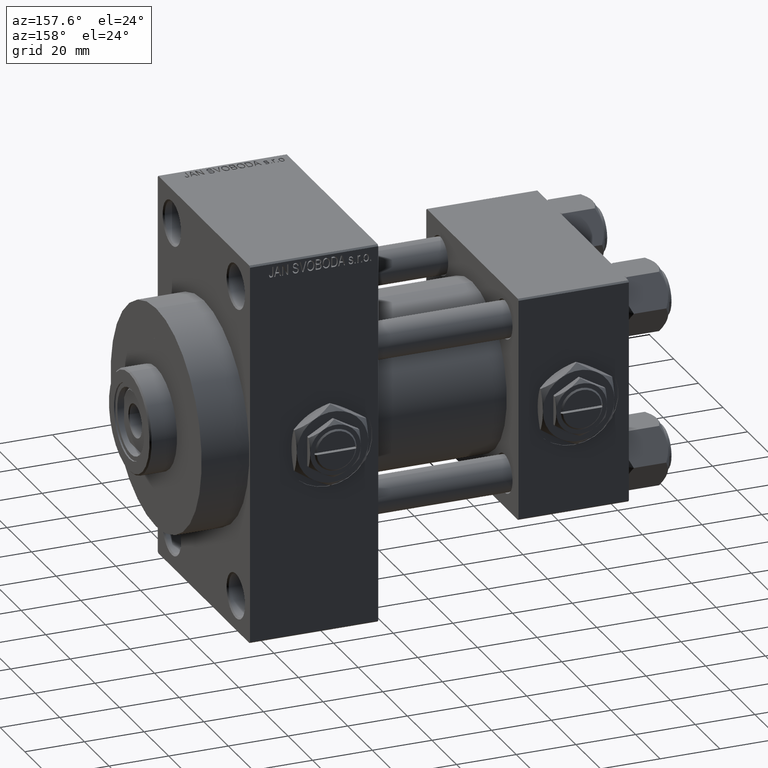
[diagram: clean part render]
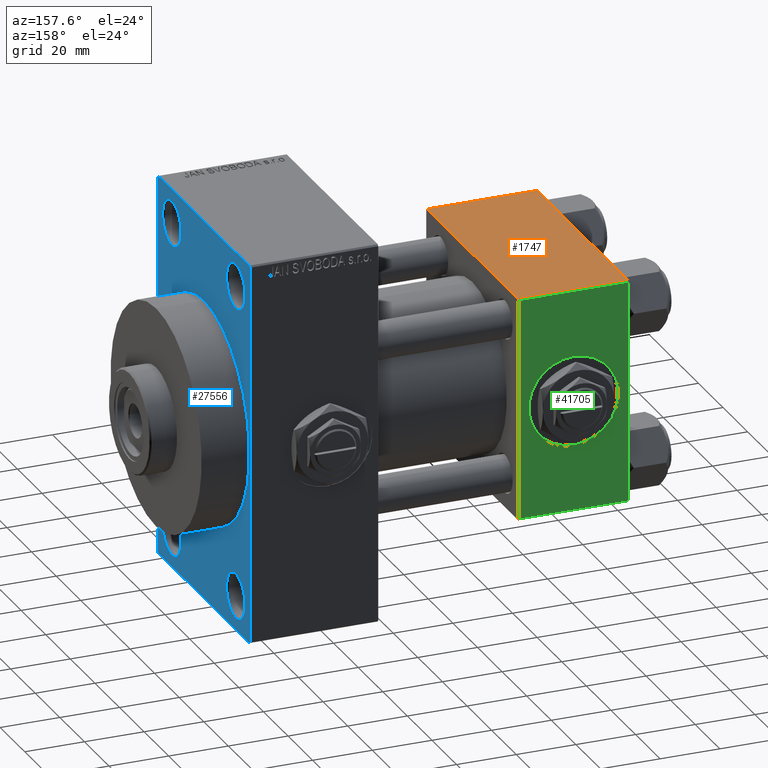
[diagram: same view with three faces highlighted in distinct colors, each labeled with its STEP entity id]
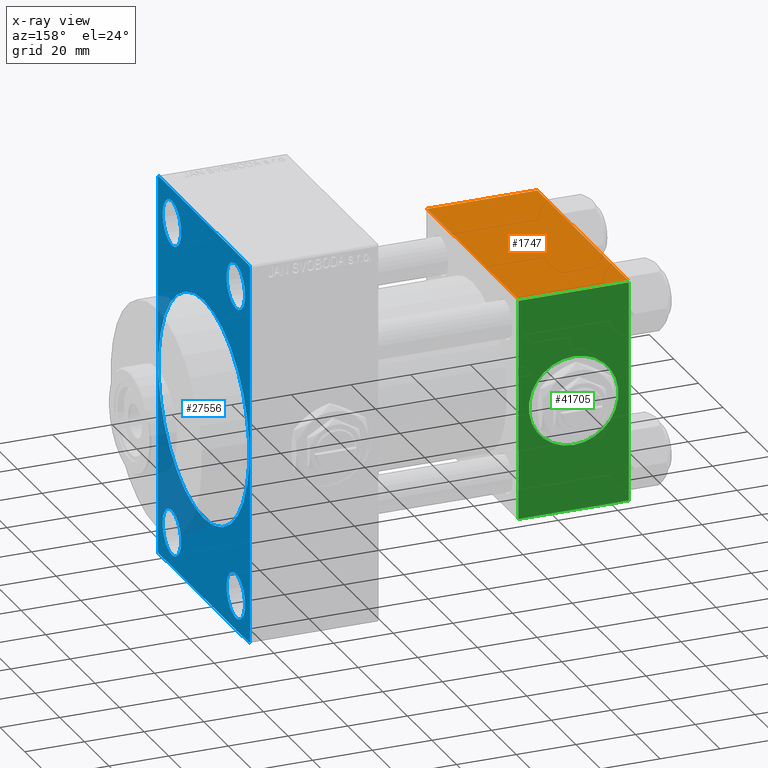
[diagram: x-ray of the same camera — body ghosted, the three highlighted faces saturated]
A machine part, auxiliary view with three faces highlighted in distinct colors.
The next image is the same camera in x-ray (body ghosted, the three faces saturated) — at least one of them is partly hidden behind the body in this view.
Their STEP definitions:

[orange] entity #1747 — the highlighted planar face has unit normal (0, 0, -1).
#1133 = DIRECTION ( 'NONE',  ( -1.000000000000000000, 0.000000000000000000, 0.000000000000000000 ) ) ;
#1747 = ADVANCED_FACE ( 'NONE', ( #3880 ), #38270, .F. ) ;
#2412 = VECTOR ( 'NONE', #1133, 1000.000000000000000 ) ;
#3880 = FACE_OUTER_BOUND ( 'NONE', #31680, .T. ) ;
#5233 = CARTESIAN_POINT ( 'NONE',  ( 0.000000000000000000, -37.00000000000000711, 37.49999999999999289 ) ) ;
#5982 = DIRECTION ( 'NONE',  ( 1.000000000000000000, 0.000000000000000000, 0.000000000000000000 ) ) ;
#6245 = EDGE_CURVE ( 'NONE', #48094, #19936, #25937, .T. ) ;
#6567 = VECTOR ( 'NONE', #5982, 1000.000000000000000 ) ;
#7854 = DIRECTION ( 'NONE',  ( 0.000000000000000000, 9.251858538542971581E-17, -1.000000000000000000 ) ) ;
#8714 = VERTEX_POINT ( 'NONE', #21236 ) ;
#10751 = CARTESIAN_POINT ( 'NONE',  ( 37.00000000000000000, 37.49999999999999289, 37.50000000000000000 ) ) ;
#12046 = ORIENTED_EDGE ( 'NONE', *, *, #17566, .T. ) ;
#12244 = ORIENTED_EDGE ( 'NONE', *, *, #37873, .F. ) ;
#15107 = CARTESIAN_POINT ( 'NONE',  ( 37.00000000000000000, 37.49999999999999289, 37.50000000000000000 ) ) ;
#17566 = EDGE_CURVE ( 'NONE', #8714, #48094, #19005, .T. ) ;
#19005 = LINE ( 'NONE', #34458, #41868 ) ;
#19936 = VERTEX_POINT ( 'NONE', #41323 ) ;
#21236 = CARTESIAN_POINT ( 'NONE',  ( 0.000000000000000000, 36.99999999999999289, 37.50000000000000000 ) ) ;
#21249 = VECTOR ( 'NONE', #36451, 1000.000000000000000 ) ;
#24561 = CARTESIAN_POINT ( 'NONE',  ( 0.000000000000000000, 36.99999999999999289, 37.50000000000000000 ) ) ;
#25937 = LINE ( 'NONE', #48102, #6567 ) ;
#25979 = LINE ( 'NONE', #10751, #21249 ) ;
#26488 = DIRECTION ( 'NONE',  ( 0.000000000000000000, -1.000000000000000000, -9.251858538542971581E-17 ) ) ;
#29906 = ORIENTED_EDGE ( 'NONE', *, *, #48959, .T. ) ;
#31680 = EDGE_LOOP ( 'NONE', ( #12046, #33719, #12244, #29906 ) ) ;
#33521 = AXIS2_PLACEMENT_3D ( 'NONE', #15107, #7854, #45987 ) ;
#33719 = ORIENTED_EDGE ( 'NONE', *, *, #6245, .T. ) ;
#34458 = CARTESIAN_POINT ( 'NONE',  ( 0.000000000000000000, 37.49999999999999289, 37.50000000000000000 ) ) ;
#35788 = LINE ( 'NONE', #24561, #2412 ) ;
#36451 = DIRECTION ( 'NONE',  ( 0.000000000000000000, -1.000000000000000000, -9.251858538542971581E-17 ) ) ;
#37873 = EDGE_CURVE ( 'NONE', #40441, #19936, #25979, .T. ) ;
#38270 = PLANE ( 'NONE',  #33521 ) ;
#40441 = VERTEX_POINT ( 'NONE', #44576 ) ;
#41323 = CARTESIAN_POINT ( 'NONE',  ( 37.00000000000000000, -37.00000000000000711, 37.49999999999999289 ) ) ;
#41868 = VECTOR ( 'NONE', #26488, 1000.000000000000000 ) ;
#44576 = CARTESIAN_POINT ( 'NONE',  ( 37.00000000000000000, 36.99999999999999289, 37.50000000000000000 ) ) ;
#45987 = DIRECTION ( 'NONE',  ( 0.000000000000000000, 1.000000000000000000, 9.251858538542971581E-17 ) ) ;
#48094 = VERTEX_POINT ( 'NONE', #5233 ) ;
#48102 = CARTESIAN_POINT ( 'NONE',  ( 37.00000000000000000, -37.00000000000000711, 37.49999999999999289 ) ) ;
#48959 = EDGE_CURVE ( 'NONE', #40441, #8714, #35788, .T. ) ;

[blue] entity #27556 — the highlighted planar face has unit normal (-1, 0, 0).
#570 = FACE_BOUND ( 'NONE', #29268, .T. ) ;
#758 = CARTESIAN_POINT ( 'NONE',  ( 127.0000000000000000, 26.00000000000000000, -59.99999999999997158 ) ) ;
#1199 = CARTESIAN_POINT ( 'NONE',  ( 127.0000000000000000, 26.00000000000000000, -45.00000000000001421 ) ) ;
#1335 = CARTESIAN_POINT ( 'NONE',  ( 127.0000000000000000, 0.000000000000000000, 0.000000000000000000 ) ) ;
#1342 = ORIENTED_EDGE ( 'NONE', *, *, #8841, .T. ) ;
#1511 = CARTESIAN_POINT ( 'NONE',  ( 127.0000000000000000, -36.99999999999999289, -64.00000000000001421 ) ) ;
#1804 = CARTESIAN_POINT ( 'NONE',  ( 127.0000000000000000, 37.50000000000000000, 63.49999999999998579 ) ) ;
#2367 = EDGE_CURVE ( 'NONE', #29842, #11015, #22469, .T. ) ;
#3235 = CARTESIAN_POINT ( 'NONE',  ( 127.0000000000000000, 0.000000000000000000, 0.000000000000000000 ) ) ;
#3335 = CARTESIAN_POINT ( 'NONE',  ( 127.0000000000000000, 0.000000000000000000, 0.000000000000000000 ) ) ;
#3370 = VERTEX_POINT ( 'NONE', #35136 ) ;
#3456 = CARTESIAN_POINT ( 'NONE',  ( 127.0000000000000000, 0.000000000000000000, 37.00000000000000000 ) ) ;
#3502 = LINE ( 'NONE', #45857, #21792 ) ;
#3568 = CARTESIAN_POINT ( 'NONE',  ( 127.0000000000000000, 37.49999999999999289, -63.50000000000001421 ) ) ;
#5158 = CARTESIAN_POINT ( 'NONE',  ( 127.0000000000000000, -25.99999999999999645, -52.49999999999999289 ) ) ;
#5307 = CIRCLE ( 'NONE', #18061, 37.00000000000000000 ) ;
#5408 = CARTESIAN_POINT ( 'NONE',  ( 127.0000000000000000, -36.99999999999999289, -64.00000000000001421 ) ) ;
#6230 = LINE ( 'NONE', #14458, #8277 ) ;
#6337 = CARTESIAN_POINT ( 'NONE',  ( 127.0000000000000000, -25.99999999999999645, 52.50000000000000000 ) ) ;
#7028 = VERTEX_POINT ( 'NONE', #40090 ) ;
#7304 = FACE_BOUND ( 'NONE', #12590, .T. ) ;
#7314 = DIRECTION ( 'NONE',  ( 0.000000000000000000, 0.000000000000000000, 1.000000000000000000 ) ) ;
#7794 = PLANE ( 'NONE',  #7833 ) ;
#7833 = AXIS2_PLACEMENT_3D ( 'NONE', #3335, #22541, #44942 ) ;
#8101 = EDGE_CURVE ( 'NONE', #29842, #43693, #3502, .T. ) ;
#8277 = VECTOR ( 'NONE', #22695, 1000.000000000000000 ) ;
#8841 = EDGE_CURVE ( 'NONE', #40517, #3370, #26595, .T. ) ;
#9321 = EDGE_CURVE ( 'NONE', #37394, #43693, #13717, .T. ) ;
#9326 = EDGE_CURVE ( 'NONE', #7028, #37394, #6230, .T. ) ;
#9429 = DIRECTION ( 'NONE',  ( -0.000000000000000000, -0.7071067811865524577, -0.7071067811865426878 ) ) ;
#9827 = EDGE_LOOP ( 'NONE', ( #29809, #30114 ) ) ;
#10225 = CIRCLE ( 'NONE', #13393, 7.499999999999978684 ) ;
#10723 = DIRECTION ( 'NONE',  ( 0.000000000000000000, -1.000000000000000000, -1.850371707708594563E-16 ) ) ;
#11015 = VERTEX_POINT ( 'NONE', #3568 ) ;
#11358 = EDGE_LOOP ( 'NONE', ( #38571, #42756 ) ) ;
#11470 = CARTESIAN_POINT ( 'NONE',  ( 127.0000000000000000, 37.49999999999999289, -63.50000000000001421 ) ) ;
#11608 = ORIENTED_EDGE ( 'NONE', *, *, #48938, .T. ) ;
#11677 = EDGE_CURVE ( 'NONE', #17211, #18455, #32311, .T. ) ;
#12365 = AXIS2_PLACEMENT_3D ( 'NONE', #6337, #41477, #7314 ) ;
#12590 = EDGE_LOOP ( 'NONE', ( #42108, #13781 ) ) ;
#12654 = EDGE_CURVE ( 'NONE', #38309, #29208, #44876, .T. ) ;
#13242 = VECTOR ( 'NONE', #32003, 1000.000000000000000 ) ;
#13393 = AXIS2_PLACEMENT_3D ( 'NONE', #5158, #31600, #16877 ) ;
#13673 = CARTESIAN_POINT ( 'NONE',  ( 127.0000000000000000, -37.49999999999999289, 63.50000000000000000 ) ) ;
#13717 = LINE ( 'NONE', #1511, #29010 ) ;
#13781 = ORIENTED_EDGE ( 'NONE', *, *, #19413, .F. ) ;
#14454 = VERTEX_POINT ( 'NONE', #3456 ) ;
#14458 = CARTESIAN_POINT ( 'NONE',  ( 127.0000000000000000, -37.49999999999999289, 63.99999999999997158 ) ) ;
#14624 = AXIS2_PLACEMENT_3D ( 'NONE', #45957, #42954, #15565 ) ;
#14729 = DIRECTION ( 'NONE',  ( -0.000000000000000000, 0.7071067811865376918, 0.7071067811865573427 ) ) ;
#15421 = EDGE_CURVE ( 'NONE', #41925, #18681, #27466, .T. ) ;
#15565 = DIRECTION ( 'NONE',  ( 0.000000000000000000, 0.000000000000000000, 1.000000000000000000 ) ) ;
#15930 = AXIS2_PLACEMENT_3D ( 'NONE', #35300, #46488, #32286 ) ;
#15999 = CARTESIAN_POINT ( 'NONE',  ( 127.0000000000000000, 37.00000000000002132, -64.00000000000000000 ) ) ;
#16550 = DIRECTION ( 'NONE',  ( 0.000000000000000000, 0.000000000000000000, -1.000000000000000000 ) ) ;
#16821 = VECTOR ( 'NONE', #14729, 1000.000000000000114 ) ;
#16877 = DIRECTION ( 'NONE',  ( 0.000000000000000000, 0.000000000000000000, 1.000000000000000000 ) ) ;
#16920 = LINE ( 'NONE', #13673, #48392 ) ;
#17113 = DIRECTION ( 'NONE',  ( 0.000000000000000000, 0.000000000000000000, 1.000000000000000000 ) ) ;
#17211 = VERTEX_POINT ( 'NONE', #1804 ) ;
#17354 = DIRECTION ( 'NONE',  ( 0.000000000000000000, -0.7071067811865474617, 0.7071067811865474617 ) ) ;
#17370 = CARTESIAN_POINT ( 'NONE',  ( 127.0000000000000000, 26.00000000000000000, 52.49999999999999289 ) ) ;
#18061 = AXIS2_PLACEMENT_3D ( 'NONE', #1335, #27785, #16550 ) ;
#18102 = DIRECTION ( 'NONE',  ( -1.000000000000000000, 0.000000000000000000, -0.000000000000000000 ) ) ;
#18455 = VERTEX_POINT ( 'NONE', #47606 ) ;
#18681 = VERTEX_POINT ( 'NONE', #30418 ) ;
#18947 = EDGE_CURVE ( 'NONE', #35602, #33478, #49073, .T. ) ;
#19289 = FACE_BOUND ( 'NONE', #42712, .T. ) ;
#19404 = ORIENTED_EDGE ( 'NONE', *, *, #8101, .F. ) ;
#19413 = EDGE_CURVE ( 'NONE', #44720, #14454, #5307, .T. ) ;
#19472 = EDGE_CURVE ( 'NONE', #18455, #25864, #28028, .T. ) ;
#20818 = CARTESIAN_POINT ( 'NONE',  ( 127.0000000000000000, 37.50000000000000000, 63.99999999999998579 ) ) ;
#21146 = CIRCLE ( 'NONE', #12365, 7.499999999999978684 ) ;
#21412 = CARTESIAN_POINT ( 'NONE',  ( 127.0000000000000000, 26.00000000000000000, -52.49999999999999289 ) ) ;
#21792 = VECTOR ( 'NONE', #10723, 1000.000000000000000 ) ;
#22175 = EDGE_CURVE ( 'NONE', #25864, #7028, #16920, .T. ) ;
#22469 = LINE ( 'NONE', #11470, #16821 ) ;
#22541 = DIRECTION ( 'NONE',  ( -1.000000000000000000, 0.000000000000000000, -0.000000000000000000 ) ) ;
#22695 = DIRECTION ( 'NONE',  ( 0.000000000000000000, 0.000000000000000000, -1.000000000000000000 ) ) ;
#23876 = DIRECTION ( 'NONE',  ( -1.000000000000000000, 0.000000000000000000, -0.000000000000000000 ) ) ;
#23955 = ORIENTED_EDGE ( 'NONE', *, *, #9321, .T. ) ;
#24589 = CARTESIAN_POINT ( 'NONE',  ( 127.0000000000000000, 37.00000000000000000, 63.99999999999998579 ) ) ;
#25761 = EDGE_LOOP ( 'NONE', ( #46219, #23955, #19404, #48710, #38120, #47297, #36500, #34828 ) ) ;
#25864 = VERTEX_POINT ( 'NONE', #29392 ) ;
#25880 = DIRECTION ( 'NONE',  ( 0.000000000000000000, 0.000000000000000000, 1.000000000000000000 ) ) ;
#26156 = CARTESIAN_POINT ( 'NONE',  ( 127.0000000000000000, -25.99999999999999645, -59.99999999999997158 ) ) ;
#26183 = DIRECTION ( 'NONE',  ( 1.000000000000000000, 0.000000000000000000, 0.000000000000000000 ) ) ;
#26595 = CIRCLE ( 'NONE', #14624, 7.499999999999978684 ) ;
#26659 = CARTESIAN_POINT ( 'NONE',  ( 127.0000000000000000, -37.49999999999999289, -63.50000000000002842 ) ) ;
#27466 = CIRCLE ( 'NONE', #29865, 7.499999999999978684 ) ;
#27506 = AXIS2_PLACEMENT_3D ( 'NONE', #30272, #48925, #37724 ) ;
#27556 = ADVANCED_FACE ( 'NONE', ( #34735, #19289, #41212, #570, #7304, #37479 ), #7794, .F. ) ;
#27774 = ORIENTED_EDGE ( 'NONE', *, *, #42809, .T. ) ;
#27785 = DIRECTION ( 'NONE',  ( 1.000000000000000000, 0.000000000000000000, 0.000000000000000000 ) ) ;
#27890 = CIRCLE ( 'NONE', #15930, 7.499999999999978684 ) ;
#28028 = LINE ( 'NONE', #39474, #13242 ) ;
#28225 = AXIS2_PLACEMENT_3D ( 'NONE', #3235, #26183, #29432 ) ;
#29010 = VECTOR ( 'NONE', #40390, 1000.000000000000000 ) ;
#29208 = VERTEX_POINT ( 'NONE', #42531 ) ;
#29268 = EDGE_LOOP ( 'NONE', ( #36633, #11608 ) ) ;
#29392 = CARTESIAN_POINT ( 'NONE',  ( 127.0000000000000000, -37.00000000000001421, 63.99999999999997158 ) ) ;
#29432 = DIRECTION ( 'NONE',  ( 0.000000000000000000, 0.000000000000000000, -1.000000000000000000 ) ) ;
#29809 = ORIENTED_EDGE ( 'NONE', *, *, #18947, .T. ) ;
#29842 = VERTEX_POINT ( 'NONE', #15999 ) ;
#29865 = AXIS2_PLACEMENT_3D ( 'NONE', #31599, #23876, #46778 ) ;
#30114 = ORIENTED_EDGE ( 'NONE', *, *, #35188, .T. ) ;
#30272 = CARTESIAN_POINT ( 'NONE',  ( 127.0000000000000000, 26.00000000000000000, -52.49999999999999289 ) ) ;
#30418 = CARTESIAN_POINT ( 'NONE',  ( 127.0000000000000000, -25.99999999999999645, 45.00000000000002132 ) ) ;
#31131 = CARTESIAN_POINT ( 'NONE',  ( 127.0000000000000000, 26.00000000000000000, 45.00000000000001421 ) ) ;
#31599 = CARTESIAN_POINT ( 'NONE',  ( 127.0000000000000000, -25.99999999999999645, 52.50000000000000000 ) ) ;
#31600 = DIRECTION ( 'NONE',  ( -1.000000000000000000, 0.000000000000000000, -0.000000000000000000 ) ) ;
#31783 = EDGE_CURVE ( 'NONE', #18681, #41925, #21146, .T. ) ;
#32003 = DIRECTION ( 'NONE',  ( 0.000000000000000000, -1.000000000000000000, -1.850371707708594563E-16 ) ) ;
#32286 = DIRECTION ( 'NONE',  ( 0.000000000000000000, 0.000000000000000000, 1.000000000000000000 ) ) ;
#32311 = LINE ( 'NONE', #24589, #43243 ) ;
#33416 = EDGE_CURVE ( 'NONE', #14454, #44720, #44111, .T. ) ;
#33478 = VERTEX_POINT ( 'NONE', #1199 ) ;
#34735 = FACE_BOUND ( 'NONE', #11358, .T. ) ;
#34828 = ORIENTED_EDGE ( 'NONE', *, *, #22175, .T. ) ;
#35136 = CARTESIAN_POINT ( 'NONE',  ( 127.0000000000000000, -25.99999999999999645, -45.00000000000001421 ) ) ;
#35188 = EDGE_CURVE ( 'NONE', #33478, #35602, #48154, .T. ) ;
#35292 = CARTESIAN_POINT ( 'NONE',  ( 127.0000000000000000, -25.99999999999999645, 59.99999999999997868 ) ) ;
#35300 = CARTESIAN_POINT ( 'NONE',  ( 127.0000000000000000, 26.00000000000000000, 52.49999999999999289 ) ) ;
#35363 = AXIS2_PLACEMENT_3D ( 'NONE', #17370, #18102, #17113 ) ;
#35602 = VERTEX_POINT ( 'NONE', #758 ) ;
#36500 = ORIENTED_EDGE ( 'NONE', *, *, #19472, .T. ) ;
#36602 = DIRECTION ( 'NONE',  ( -1.000000000000000000, 0.000000000000000000, -0.000000000000000000 ) ) ;
#36633 = ORIENTED_EDGE ( 'NONE', *, *, #12654, .T. ) ;
#37169 = AXIS2_PLACEMENT_3D ( 'NONE', #21412, #36602, #25880 ) ;
#37394 = VERTEX_POINT ( 'NONE', #26659 ) ;
#37479 = FACE_OUTER_BOUND ( 'NONE', #25761, .T. ) ;
#37724 = DIRECTION ( 'NONE',  ( 0.000000000000000000, 0.000000000000000000, 1.000000000000000000 ) ) ;
#38120 = ORIENTED_EDGE ( 'NONE', *, *, #45806, .F. ) ;
#38309 = VERTEX_POINT ( 'NONE', #31131 ) ;
#38571 = ORIENTED_EDGE ( 'NONE', *, *, #31783, .T. ) ;
#39474 = CARTESIAN_POINT ( 'NONE',  ( 127.0000000000000000, 37.50000000000000000, 63.99999999999998579 ) ) ;
#39744 = LINE ( 'NONE', #20818, #45243 ) ;
#40090 = CARTESIAN_POINT ( 'NONE',  ( 127.0000000000000000, -37.49999999999999289, 63.50000000000000000 ) ) ;
#40390 = DIRECTION ( 'NONE',  ( 0.000000000000000000, 0.7071067811865573427, -0.7071067811865378028 ) ) ;
#40517 = VERTEX_POINT ( 'NONE', #26156 ) ;
#41212 = FACE_BOUND ( 'NONE', #9827, .T. ) ;
#41477 = DIRECTION ( 'NONE',  ( -1.000000000000000000, 0.000000000000000000, -0.000000000000000000 ) ) ;
#41925 = VERTEX_POINT ( 'NONE', #35292 ) ;
#42108 = ORIENTED_EDGE ( 'NONE', *, *, #33416, .F. ) ;
#42531 = CARTESIAN_POINT ( 'NONE',  ( 127.0000000000000000, 26.00000000000000000, 59.99999999999997158 ) ) ;
#42712 = EDGE_LOOP ( 'NONE', ( #1342, #27774 ) ) ;
#42756 = ORIENTED_EDGE ( 'NONE', *, *, #15421, .T. ) ;
#42809 = EDGE_CURVE ( 'NONE', #3370, #40517, #10225, .T. ) ;
#42954 = DIRECTION ( 'NONE',  ( -1.000000000000000000, 0.000000000000000000, -0.000000000000000000 ) ) ;
#43243 = VECTOR ( 'NONE', #17354, 1000.000000000000114 ) ;
#43693 = VERTEX_POINT ( 'NONE', #5408 ) ;
#43721 = DIRECTION ( 'NONE',  ( 0.000000000000000000, -5.421010862427522170E-17, -1.000000000000000000 ) ) ;
#44111 = CIRCLE ( 'NONE', #28225, 37.00000000000000000 ) ;
#44720 = VERTEX_POINT ( 'NONE', #47787 ) ;
#44876 = CIRCLE ( 'NONE', #35363, 7.499999999999978684 ) ;
#44942 = DIRECTION ( 'NONE',  ( -0.000000000000000000, 0.000000000000000000, 1.000000000000000000 ) ) ;
#45243 = VECTOR ( 'NONE', #43721, 1000.000000000000000 ) ;
#45806 = EDGE_CURVE ( 'NONE', #17211, #11015, #39744, .T. ) ;
#45857 = CARTESIAN_POINT ( 'NONE',  ( 127.0000000000000000, 37.49999999999999289, -64.00000000000000000 ) ) ;
#45957 = CARTESIAN_POINT ( 'NONE',  ( 127.0000000000000000, -25.99999999999999645, -52.49999999999999289 ) ) ;
#46219 = ORIENTED_EDGE ( 'NONE', *, *, #9326, .T. ) ;
#46488 = DIRECTION ( 'NONE',  ( -1.000000000000000000, 0.000000000000000000, -0.000000000000000000 ) ) ;
#46778 = DIRECTION ( 'NONE',  ( 0.000000000000000000, 0.000000000000000000, 1.000000000000000000 ) ) ;
#47297 = ORIENTED_EDGE ( 'NONE', *, *, #11677, .T. ) ;
#47606 = CARTESIAN_POINT ( 'NONE',  ( 127.0000000000000000, 37.00000000000000000, 63.99999999999998579 ) ) ;
#47787 = CARTESIAN_POINT ( 'NONE',  ( 127.0000000000000000, 4.531193156845206793E-15, -37.00000000000000000 ) ) ;
#48154 = CIRCLE ( 'NONE', #27506, 7.499999999999978684 ) ;
#48392 = VECTOR ( 'NONE', #9429, 1000.000000000000000 ) ;
#48710 = ORIENTED_EDGE ( 'NONE', *, *, #2367, .T. ) ;
#48925 = DIRECTION ( 'NONE',  ( -1.000000000000000000, 0.000000000000000000, -0.000000000000000000 ) ) ;
#48938 = EDGE_CURVE ( 'NONE', #29208, #38309, #27890, .T. ) ;
#49073 = CIRCLE ( 'NONE', #37169, 7.499999999999978684 ) ;

[green] entity #41705 — the highlighted planar face has unit normal (0, 1, 0).
#281 = VERTEX_POINT ( 'NONE', #30494 ) ;
#2423 = PLANE ( 'NONE',  #4605 ) ;
#2590 = AXIS2_PLACEMENT_3D ( 'NONE', #13428, #39117, #17434 ) ;
#2652 = EDGE_CURVE ( 'NONE', #38922, #281, #43185, .T. ) ;
#2970 = VERTEX_POINT ( 'NONE', #41896 ) ;
#4605 = AXIS2_PLACEMENT_3D ( 'NONE', #17635, #32838, #10383 ) ;
#5278 = EDGE_CURVE ( 'NONE', #281, #38922, #27264, .T. ) ;
#6407 = EDGE_CURVE ( 'NONE', #15404, #17478, #11388, .T. ) ;
#7762 = EDGE_CURVE ( 'NONE', #17478, #2970, #45670, .T. ) ;
#9384 = CARTESIAN_POINT ( 'NONE',  ( 0.000000000000000000, 37.49999999999999289, 37.00000000000000000 ) ) ;
#10383 = DIRECTION ( 'NONE',  ( 0.000000000000000000, -0.000000000000000000, 1.000000000000000000 ) ) ;
#11334 = CARTESIAN_POINT ( 'NONE',  ( 0.000000000000000000, 37.49999999999999289, 37.50000000000000000 ) ) ;
#11388 = LINE ( 'NONE', #45290, #40803 ) ;
#11665 = DIRECTION ( 'NONE',  ( 0.000000000000000000, 0.000000000000000000, 1.000000000000000000 ) ) ;
#12461 = VECTOR ( 'NONE', #41747, 1000.000000000000000 ) ;
#12892 = ORIENTED_EDGE ( 'NONE', *, *, #2652, .F. ) ;
#13428 = CARTESIAN_POINT ( 'NONE',  ( 18.50000000000000000, 37.49999999999999289, 0.000000000000000000 ) ) ;
#13578 = ORIENTED_EDGE ( 'NONE', *, *, #19357, .F. ) ;
#14081 = VECTOR ( 'NONE', #47486, 1000.000000000000000 ) ;
#15404 = VERTEX_POINT ( 'NONE', #9384 ) ;
#17093 = LINE ( 'NONE', #44492, #14081 ) ;
#17434 = DIRECTION ( 'NONE',  ( 0.000000000000000000, 0.000000000000000000, 1.000000000000000000 ) ) ;
#17478 = VERTEX_POINT ( 'NONE', #22743 ) ;
#17635 = CARTESIAN_POINT ( 'NONE',  ( 37.00000000000000000, 37.49999999999999289, 37.50000000000000000 ) ) ;
#19357 = EDGE_CURVE ( 'NONE', #15404, #43732, #49213, .T. ) ;
#22743 = CARTESIAN_POINT ( 'NONE',  ( 37.00000000000000000, 37.49999999999999289, 37.00000000000000000 ) ) ;
#23598 = DIRECTION ( 'NONE',  ( 1.000000000000000000, 0.000000000000000000, 0.000000000000000000 ) ) ;
#25608 = FACE_OUTER_BOUND ( 'NONE', #42826, .T. ) ;
#26266 = CARTESIAN_POINT ( 'NONE',  ( 37.00000000000000000, 37.49999999999999289, 37.50000000000000000 ) ) ;
#27264 = CIRCLE ( 'NONE', #2590, 15.00000000000000178 ) ;
#30494 = CARTESIAN_POINT ( 'NONE',  ( 18.50000000000000000, 37.49999999999999289, 15.00000000000000178 ) ) ;
#31426 = ORIENTED_EDGE ( 'NONE', *, *, #6407, .T. ) ;
#32838 = DIRECTION ( 'NONE',  ( -0.000000000000000000, 1.000000000000000000, 0.000000000000000000 ) ) ;
#32864 = AXIS2_PLACEMENT_3D ( 'NONE', #45564, #45324, #11665 ) ;
#34720 = DIRECTION ( 'NONE',  ( 0.000000000000000000, 0.000000000000000000, -1.000000000000000000 ) ) ;
#36577 = FACE_BOUND ( 'NONE', #43381, .T. ) ;
#37668 = VECTOR ( 'NONE', #34720, 1000.000000000000000 ) ;
#38922 = VERTEX_POINT ( 'NONE', #41368 ) ;
#39024 = ORIENTED_EDGE ( 'NONE', *, *, #5278, .F. ) ;
#39117 = DIRECTION ( 'NONE',  ( 0.000000000000000000, 1.000000000000000000, 0.000000000000000000 ) ) ;
#39322 = EDGE_CURVE ( 'NONE', #2970, #43732, #17093, .T. ) ;
#40456 = ORIENTED_EDGE ( 'NONE', *, *, #39322, .T. ) ;
#40803 = VECTOR ( 'NONE', #23598, 1000.000000000000000 ) ;
#41368 = CARTESIAN_POINT ( 'NONE',  ( 18.50000000000000355, 37.49999999999999289, -15.00000000000000178 ) ) ;
#41705 = ADVANCED_FACE ( 'NONE', ( #36577, #25608 ), #2423, .T. ) ;
#41747 = DIRECTION ( 'NONE',  ( 0.000000000000000000, 0.000000000000000000, -1.000000000000000000 ) ) ;
#41896 = CARTESIAN_POINT ( 'NONE',  ( 37.00000000000000000, 37.49999999999999289, -36.99999999999998579 ) ) ;
#42826 = EDGE_LOOP ( 'NONE', ( #47887, #40456, #13578, #31426 ) ) ;
#43185 = CIRCLE ( 'NONE', #32864, 15.00000000000000178 ) ;
#43381 = EDGE_LOOP ( 'NONE', ( #39024, #12892 ) ) ;
#43732 = VERTEX_POINT ( 'NONE', #46783 ) ;
#44492 = CARTESIAN_POINT ( 'NONE',  ( 37.00000000000000000, 37.49999999999999289, -36.99999999999998579 ) ) ;
#45290 = CARTESIAN_POINT ( 'NONE',  ( 37.00000000000000000, 37.49999999999999289, 37.00000000000000000 ) ) ;
#45324 = DIRECTION ( 'NONE',  ( 0.000000000000000000, 1.000000000000000000, 0.000000000000000000 ) ) ;
#45564 = CARTESIAN_POINT ( 'NONE',  ( 18.50000000000000000, 37.49999999999999289, 0.000000000000000000 ) ) ;
#45670 = LINE ( 'NONE', #26266, #37668 ) ;
#46783 = CARTESIAN_POINT ( 'NONE',  ( 0.000000000000000000, 37.49999999999999289, -36.99999999999998579 ) ) ;
#47486 = DIRECTION ( 'NONE',  ( -1.000000000000000000, 0.000000000000000000, 0.000000000000000000 ) ) ;
#47887 = ORIENTED_EDGE ( 'NONE', *, *, #7762, .T. ) ;
#49213 = LINE ( 'NONE', #11334, #12461 ) ;